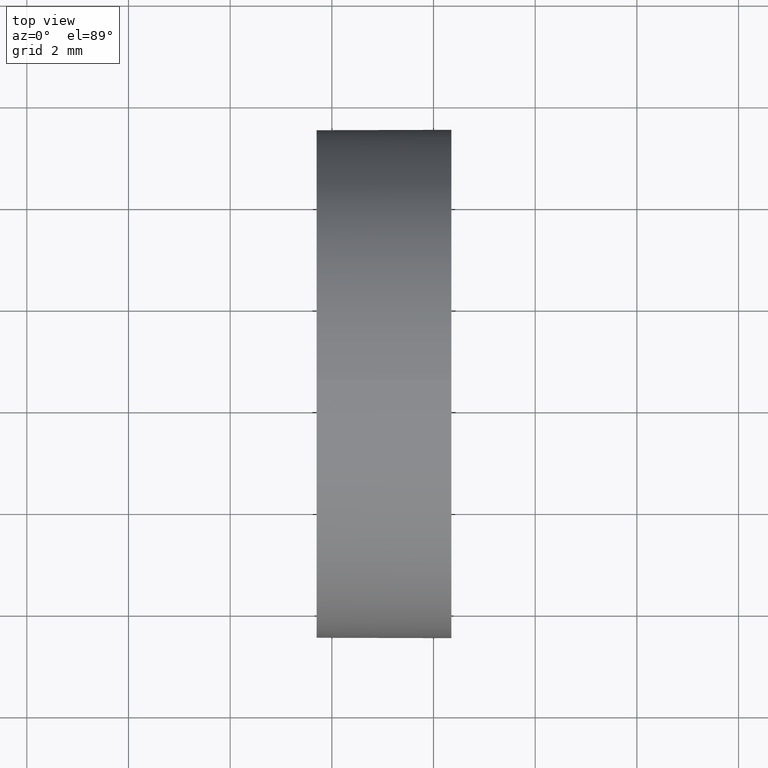
[diagram: clean part render]
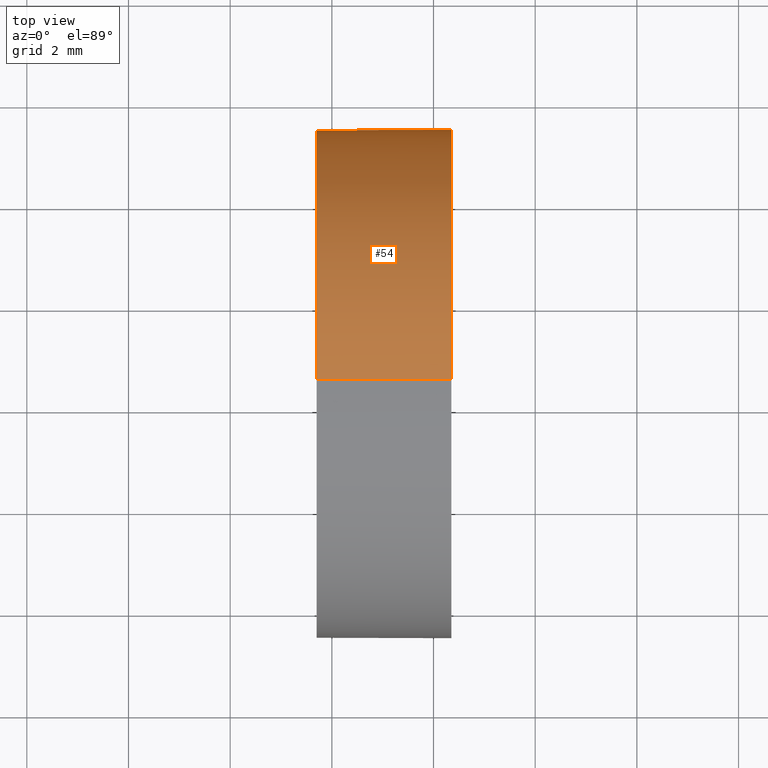
[diagram: same view with one face highlighted and labeled with its STEP entity id]
A machine part, top view. The second image highlights one B-rep face of the part: STEP entity #54.
In plain terms, the highlighted cylindrical surface (partial cylindrical patch) has radius 5 mm, axis along (-1, -0, -0).
Its self-contained STEP definition (entity closure, byte-faithful):
#4 = VERTEX_POINT ( 'NONE', #21 ) ;
#5 = DIRECTION ( 'NONE',  ( -1.000000000000000000, -0.0000000000000000000, -0.0000000000000000000 ) ) ;
#9 = VERTEX_POINT ( 'NONE', #63 ) ;
#15 = DIRECTION ( 'NONE',  ( -1.000000000000000000, -0.0000000000000000000, -0.0000000000000000000 ) ) ;
#17 = DIRECTION ( 'NONE',  ( 0.0000000000000000000, 0.0000000000000000000, 1.000000000000000000 ) ) ;
#21 = CARTESIAN_POINT ( 'NONE',  ( 50.34998972644154900, 28.47759563463748100, 4.999999999999990200 ) ) ;
#22 = DIRECTION ( 'NONE',  ( 0.0000000000000000000, 0.0000000000000000000, 1.000000000000000000 ) ) ;
#23 = VECTOR ( 'NONE', #15, 1000.000000000000000 ) ;
#26 = ORIENTED_EDGE ( 'NONE', *, *, #68, .T. ) ;
#31 = VECTOR ( 'NONE', #76, 1000.000000000000000 ) ;
#32 = CARTESIAN_POINT ( 'NONE',  ( 47.70171121220715100, 28.47759563463748100, 0.0000000000000000000 ) ) ;
#34 = DIRECTION ( 'NONE',  ( -1.000000000000000000, -0.0000000000000000000, -0.0000000000000000000 ) ) ;
#36 = CARTESIAN_POINT ( 'NONE',  ( 44.78209190302423800, 28.47759563463748100, 0.0000000000000000000 ) ) ;
#43 = VERTEX_POINT ( 'NONE', #106 ) ;
#46 = ORIENTED_EDGE ( 'NONE', *, *, #141, .T. ) ;
#48 = CARTESIAN_POINT ( 'NONE',  ( 50.34998972644154900, 28.47759563463748100, 0.0000000000000000000 ) ) ;
#53 = CIRCLE ( 'NONE', #122, 4.999999999999997300 ) ;
#54 = ADVANCED_FACE ( 'NONE', ( #139 ), #149, .T. ) ;
#55 = EDGE_CURVE ( 'NONE', #43, #9, #95, .T. ) ;
#63 = CARTESIAN_POINT ( 'NONE',  ( 50.34998972644154900, 28.47759563463748100, -4.999999999999990200 ) ) ;
#68 = EDGE_CURVE ( 'NONE', #9, #85, #73, .T. ) ;
#73 = LINE ( 'NONE', #105, #31 ) ;
#74 = DIRECTION ( 'NONE',  ( 0.0000000000000000000, 0.0000000000000000000, 1.000000000000000000 ) ) ;
#75 = CARTESIAN_POINT ( 'NONE',  ( 44.78209190302423800, 28.47759563463748100, 4.999999999999993800 ) ) ;
#76 = DIRECTION ( 'NONE',  ( -1.000000000000000000, -0.0000000000000000000, -0.0000000000000000000 ) ) ;
#80 = AXIS2_PLACEMENT_3D ( 'NONE', #36, #147, #22 ) ;
#82 = ORIENTED_EDGE ( 'NONE', *, *, #156, .F. ) ;
#85 = VERTEX_POINT ( 'NONE', #163 ) ;
#90 = AXIS2_PLACEMENT_3D ( 'NONE', #48, #121, #165 ) ;
#95 = CIRCLE ( 'NONE', #127, 4.999999999999990200 ) ;
#99 = LINE ( 'NONE', #75, #23 ) ;
#102 = CARTESIAN_POINT ( 'NONE',  ( 50.34998972644154900, 28.47759563463748100, 0.0000000000000000000 ) ) ;
#105 = CARTESIAN_POINT ( 'NONE',  ( 44.78209190302423800, 28.47759563463748100, -4.999999999999993800 ) ) ;
#106 = CARTESIAN_POINT ( 'NONE',  ( 50.34998972644154900, 33.47759563463747400, 6.123233995736756400E-016 ) ) ;
#121 = DIRECTION ( 'NONE',  ( -1.000000000000000000, -0.0000000000000000000, -0.0000000000000000000 ) ) ;
#122 = AXIS2_PLACEMENT_3D ( 'NONE', #32, #5, #74 ) ;
#127 = AXIS2_PLACEMENT_3D ( 'NONE', #102, #34, #17 ) ;
#139 = FACE_OUTER_BOUND ( 'NONE', #169, .T. ) ;
#141 = EDGE_CURVE ( 'NONE', #4, #43, #152, .T. ) ;
#146 = EDGE_CURVE ( 'NONE', #4, #148, #99, .T. ) ;
#147 = DIRECTION ( 'NONE',  ( -1.000000000000000000, -0.0000000000000000000, -0.0000000000000000000 ) ) ;
#148 = VERTEX_POINT ( 'NONE', #164 ) ;
#149 = CYLINDRICAL_SURFACE ( 'NONE', #80, 4.999999999999993800 ) ;
#152 = CIRCLE ( 'NONE', #90, 4.999999999999990200 ) ;
#155 = ORIENTED_EDGE ( 'NONE', *, *, #146, .F. ) ;
#156 = EDGE_CURVE ( 'NONE', #148, #85, #53, .T. ) ;
#163 = CARTESIAN_POINT ( 'NONE',  ( 47.70171121220715100, 28.47759563463748100, -4.999999999999997300 ) ) ;
#164 = CARTESIAN_POINT ( 'NONE',  ( 47.70171121220715100, 28.47759563463748100, 4.999999999999997300 ) ) ;
#165 = DIRECTION ( 'NONE',  ( 0.0000000000000000000, 0.0000000000000000000, 1.000000000000000000 ) ) ;
#169 = EDGE_LOOP ( 'NONE', ( #184, #26, #82, #155, #46 ) ) ;
#184 = ORIENTED_EDGE ( 'NONE', *, *, #55, .T. ) ;